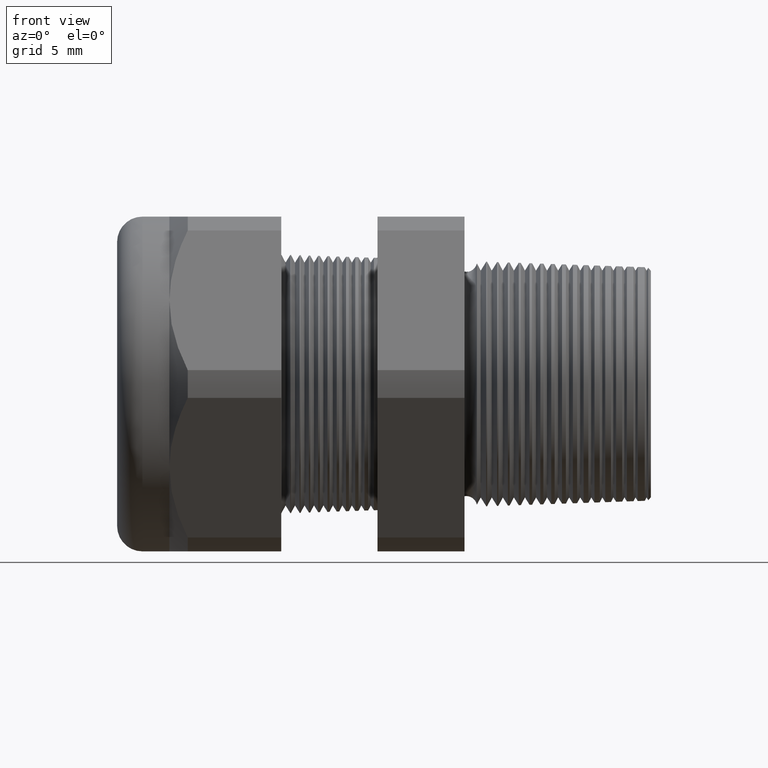
[diagram: clean part render]
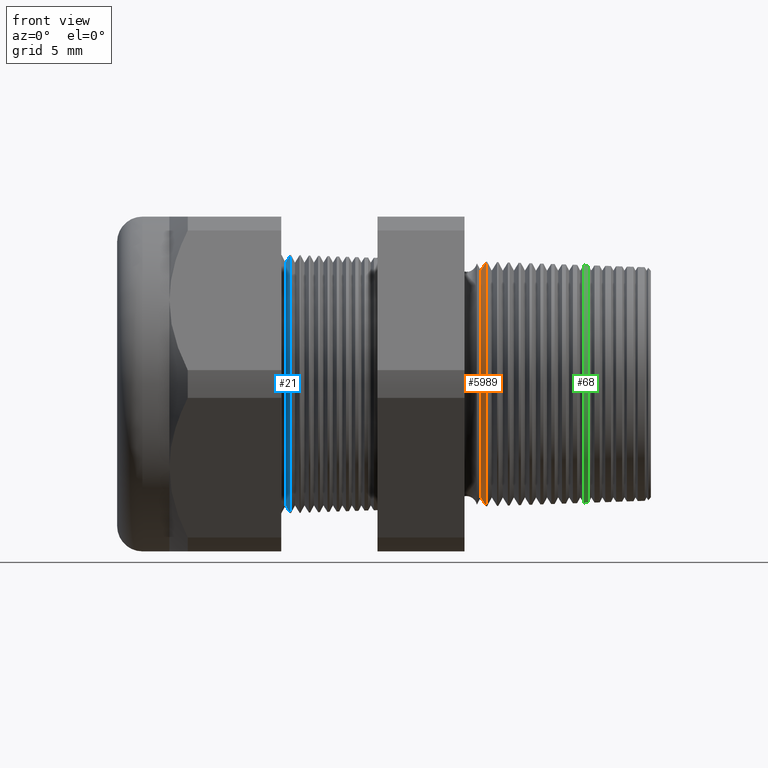
[diagram: same view with three faces highlighted in distinct colors, each labeled with its STEP entity id]
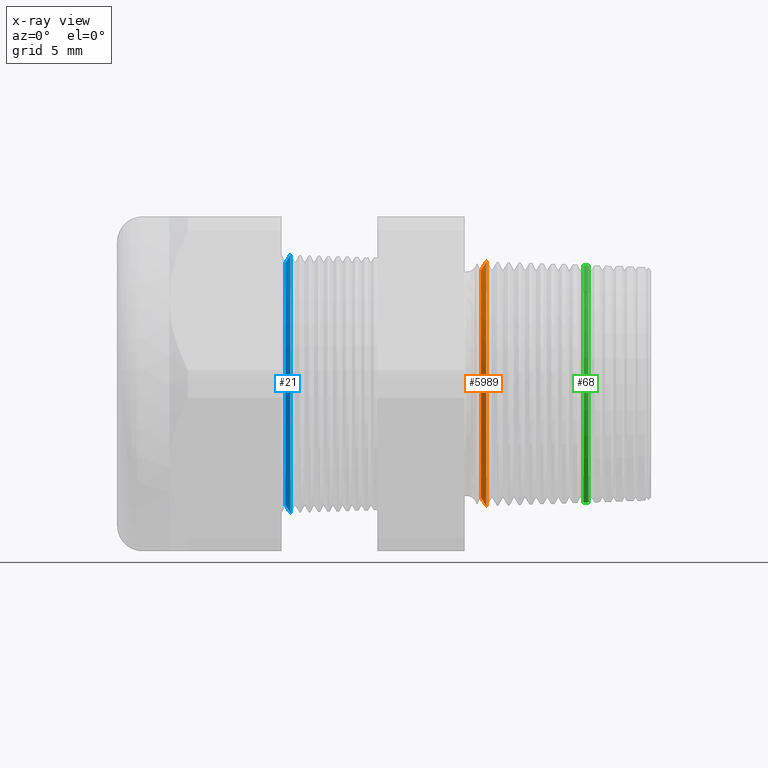
[diagram: x-ray of the same camera — body ghosted, the three highlighted faces saturated]
A machine part, front view with three faces highlighted in distinct colors.
The next image is the same camera in x-ray (body ghosted, the three faces saturated) — at least one of them is partly hidden behind the body in this view.
Their STEP definitions:

[orange] entity #5989 — the highlighted conical surface has half-angle 58 deg.
#456 = VERTEX_POINT ( 'NONE', #1451 ) ;
#457 = VERTEX_POINT ( 'NONE', #1450 ) ;
#459 = EDGE_CURVE ( 'NONE', #457, #460, #1449, .T. ) ;
#460 = VERTEX_POINT ( 'NONE', #1512 ) ;
#463 = VERTEX_POINT ( 'NONE', #1506 ) ;
#465 = EDGE_CURVE ( 'NONE', #456, #463, #1505, .T. ) ;
#1449 = LINE ( 'NONE', #1515, #1514 ) ;
#1450 = CARTESIAN_POINT ( 'NONE',  ( -0.2587370280109210800, 0.0000000000000000000, 0.3591487532021881400 ) ) ;
#1451 = CARTESIAN_POINT ( 'NONE',  ( -0.2587370280109210800, 4.538050950563370000E-017, -0.3591487532021881400 ) ) ;
#1502 = DIRECTION ( 'NONE',  ( 0.5299192642331928000, 0.0000000000000000000, -0.8480480961564335100 ) ) ;
#1503 = VECTOR ( 'NONE', #1502, 39.37007874015748900 ) ;
#1504 = CARTESIAN_POINT ( 'NONE',  ( -0.2587370280109210800, 0.0000000000000000000, -0.3591487532021881400 ) ) ;
#1505 = LINE ( 'NONE', #1504, #1503 ) ;
#1506 = CARTESIAN_POINT ( 'NONE',  ( -0.2411275089207906800, 4.743422911943913400E-017, -0.3873298746419349700 ) ) ;
#1512 = CARTESIAN_POINT ( 'NONE',  ( -0.2411275089207906800, 0.0000000000000000000, 0.3873298746419349700 ) ) ;
#1513 = DIRECTION ( 'NONE',  ( 0.5299192642331928000, 1.038559386480983200E-016, 0.8480480961564335100 ) ) ;
#1514 = VECTOR ( 'NONE', #1513, 39.37007874015748900 ) ;
#1515 = CARTESIAN_POINT ( 'NONE',  ( -0.2587370280109210800, 4.398303710268224600E-017, 0.3591487532021881400 ) ) ;
#2077 = DIRECTION ( 'NONE',  ( 0.0000000000000000000, 0.0000000000000000000, -1.000000000000000000 ) ) ;
#2078 = DIRECTION ( 'NONE',  ( 1.000000000000000000, 0.0000000000000000000, 0.0000000000000000000 ) ) ;
#2079 = CARTESIAN_POINT ( 'NONE',  ( -0.2587370280109210800, 0.0000000000000000000, 0.0000000000000000000 ) ) ;
#2080 = AXIS2_PLACEMENT_3D ( 'NONE', #2079, #2078, #2077 ) ;
#2081 = CIRCLE ( 'NONE', #2080, 0.3591487532021881400 ) ;
#2721 = CARTESIAN_POINT ( 'NONE',  ( -0.2411275089207906800, 0.0000000000000000000, 0.0000000000000000000 ) ) ;
#2722 = AXIS2_PLACEMENT_3D ( 'NONE', #2721, #2783, #2782 ) ;
#2723 = CIRCLE ( 'NONE', #2722, 0.3873298746419349700 ) ;
#2782 = DIRECTION ( 'NONE',  ( 0.0000000000000000000, 0.0000000000000000000, -1.000000000000000000 ) ) ;
#2783 = DIRECTION ( 'NONE',  ( -1.000000000000000000, 0.0000000000000000000, 0.0000000000000000000 ) ) ;
#3812 = EDGE_CURVE ( 'NONE', #457, #456, #2081, .T. ) ;
#4169 = EDGE_CURVE ( 'NONE', #463, #460, #2723, .T. ) ;
#5701 = DIRECTION ( 'NONE',  ( 0.0000000000000000000, 0.0000000000000000000, -1.000000000000000000 ) ) ;
#5702 = DIRECTION ( 'NONE',  ( 1.000000000000000000, 0.0000000000000000000, 0.0000000000000000000 ) ) ;
#5703 = CARTESIAN_POINT ( 'NONE',  ( -0.2587370280109210800, 0.0000000000000000000, 0.0000000000000000000 ) ) ;
#5704 = AXIS2_PLACEMENT_3D ( 'NONE', #5703, #5702, #5701 ) ;
#5705 = CONICAL_SURFACE ( 'NONE', #5704, 0.3591487532021881400, 1.012290966156725400 ) ;
#5706 = FACE_OUTER_BOUND ( 'NONE', #5988, .T. ) ;
#5978 = ORIENTED_EDGE ( 'NONE', *, *, #465, .T. ) ;
#5979 = ORIENTED_EDGE ( 'NONE', *, *, #4169, .T. ) ;
#5984 = ORIENTED_EDGE ( 'NONE', *, *, #3812, .T. ) ;
#5986 = ORIENTED_EDGE ( 'NONE', *, *, #459, .F. ) ;
#5988 = EDGE_LOOP ( 'NONE', ( #5986, #5984, #5978, #5979 ) ) ;
#5989 = ADVANCED_FACE ( 'NONE', ( #5706 ), #5705, .T. ) ;

[blue] entity #21 — the highlighted conical surface has half-angle 58 deg.
#16 = ORIENTED_EDGE ( 'NONE', *, *, #4545, .T. ) ;
#17 = ORIENTED_EDGE ( 'NONE', *, *, #26, .T. ) ;
#18 = EDGE_LOOP ( 'NONE', ( #19, #17, #16, #60 ) ) ;
#19 = ORIENTED_EDGE ( 'NONE', *, *, #4566, .F. ) ;
#21 = ADVANCED_FACE ( 'NONE', ( #675 ), #670, .T. ) ;
#26 = EDGE_CURVE ( 'NONE', #4549, #4577, #664, .T. ) ;
#60 = ORIENTED_EDGE ( 'NONE', *, *, #131, .F. ) ;
#131 = EDGE_CURVE ( 'NONE', #4557, #4547, #852, .T. ) ;
#660 = DIRECTION ( 'NONE',  ( 0.0000000000000000000, 0.0000000000000000000, -1.000000000000000000 ) ) ;
#661 = DIRECTION ( 'NONE',  ( 1.000000000000000000, 0.0000000000000000000, 0.0000000000000000000 ) ) ;
#662 = CARTESIAN_POINT ( 'NONE',  ( -0.8767624839723554600, 0.0000000000000000000, 0.0000000000000000000 ) ) ;
#663 = AXIS2_PLACEMENT_3D ( 'NONE', #662, #661, #660 ) ;
#664 = CIRCLE ( 'NONE', #663, 0.3845114984791284100 ) ;
#666 = DIRECTION ( 'NONE',  ( 0.0000000000000000000, 0.0000000000000000000, -1.000000000000000000 ) ) ;
#667 = DIRECTION ( 'NONE',  ( 1.000000000000000000, 0.0000000000000000000, 0.0000000000000000000 ) ) ;
#668 = CARTESIAN_POINT ( 'NONE',  ( -0.8767624839723554600, 0.0000000000000000000, 0.0000000000000000000 ) ) ;
#669 = AXIS2_PLACEMENT_3D ( 'NONE', #668, #667, #666 ) ;
#670 = CONICAL_SURFACE ( 'NONE', #669, 0.3845114984791284100, 1.012290966156732100 ) ;
#675 = FACE_OUTER_BOUND ( 'NONE', #18, .T. ) ;
#843 = DIRECTION ( 'NONE',  ( 0.0000000000000000000, 0.0000000000000000000, -1.000000000000000000 ) ) ;
#844 = DIRECTION ( 'NONE',  ( 1.000000000000000000, 0.0000000000000000000, 0.0000000000000000000 ) ) ;
#845 = CARTESIAN_POINT ( 'NONE',  ( -0.8614650324796656600, 0.0000000000000000000, 0.0000000000000000000 ) ) ;
#846 = AXIS2_PLACEMENT_3D ( 'NONE', #845, #844, #843 ) ;
#852 = CIRCLE ( 'NONE', #846, 0.4089925383092116200 ) ;
#3436 = LINE ( 'NONE', #3501, #3500 ) ;
#3489 = CARTESIAN_POINT ( 'NONE',  ( -0.8767624839723554600, 0.0000000000000000000, 0.3845114984791284100 ) ) ;
#3498 = CARTESIAN_POINT ( 'NONE',  ( -0.8614650324796656600, 5.008714029155272400E-017, -0.4089925383092116200 ) ) ;
#3499 = DIRECTION ( 'NONE',  ( 0.5299192642331871400, 0.0000000000000000000, -0.8480480961564369500 ) ) ;
#3500 = VECTOR ( 'NONE', #3499, 39.37007874015748900 ) ;
#3501 = CARTESIAN_POINT ( 'NONE',  ( -0.8767624839723554600, 0.0000000000000000000, -0.3845114984791284100 ) ) ;
#3512 = CARTESIAN_POINT ( 'NONE',  ( -0.8767624839723554600, 4.864979817491159200E-017, -0.3845114984791284100 ) ) ;
#3521 = DIRECTION ( 'NONE',  ( 0.5299192642331871400, 1.038559386480987400E-016, 0.8480480961564369500 ) ) ;
#3522 = VECTOR ( 'NONE', #3521, 39.37007874015748900 ) ;
#3523 = CARTESIAN_POINT ( 'NONE',  ( -0.8767624839723554600, 4.708907758478169600E-017, 0.3845114984791284100 ) ) ;
#3524 = LINE ( 'NONE', #3523, #3522 ) ;
#3536 = CARTESIAN_POINT ( 'NONE',  ( -0.8614650324796656600, 0.0000000000000000000, 0.4089925383092116200 ) ) ;
#4545 = EDGE_CURVE ( 'NONE', #4577, #4547, #3436, .T. ) ;
#4547 = VERTEX_POINT ( 'NONE', #3498 ) ;
#4549 = VERTEX_POINT ( 'NONE', #3489 ) ;
#4557 = VERTEX_POINT ( 'NONE', #3536 ) ;
#4566 = EDGE_CURVE ( 'NONE', #4549, #4557, #3524, .T. ) ;
#4577 = VERTEX_POINT ( 'NONE', #3512 ) ;

[green] entity #68 — the highlighted conical surface has half-angle 2 deg.
#57 = ORIENTED_EDGE ( 'NONE', *, *, #4932, .F. ) ;
#63 = EDGE_LOOP ( 'NONE', ( #57, #3790, #3788, #3787 ) ) ;
#68 = ADVANCED_FACE ( 'NONE', ( #721 ), #720, .T. ) ;
#717 = DIRECTION ( 'NONE',  ( 0.0000000000000000000, 0.0000000000000000000, 1.000000000000000000 ) ) ;
#718 = DIRECTION ( 'NONE',  ( -1.000000000000000000, 0.0000000000000000000, 0.0000000000000000000 ) ) ;
#719 = AXIS2_PLACEMENT_3D ( 'NONE', #727, #718, #717 ) ;
#720 = CONICAL_SURFACE ( 'NONE', #719, 0.3691317010271071300, 0.03490658503987932600 ) ;
#721 = FACE_OUTER_BOUND ( 'NONE', #63, .T. ) ;
#727 = CARTESIAN_POINT ( 'NONE',  ( 0.2800000000000000300, 0.0000000000000000000, 0.0000000000000000000 ) ) ;
#2002 = DIRECTION ( 'NONE',  ( 0.0000000000000000000, 0.0000000000000000000, 1.000000000000000000 ) ) ;
#2003 = DIRECTION ( 'NONE',  ( 1.000000000000000000, 0.0000000000000000000, 0.0000000000000000000 ) ) ;
#2004 = CARTESIAN_POINT ( 'NONE',  ( 0.08228380906208861100, 0.0000000000000000000, 0.0000000000000000000 ) ) ;
#2005 = AXIS2_PLACEMENT_3D ( 'NONE', #2004, #2003, #2002 ) ;
#2006 = CIRCLE ( 'NONE', #2005, 0.3760361025556349700 ) ;
#2018 = DIRECTION ( 'NONE',  ( 0.0000000000000000000, 0.0000000000000000000, -1.000000000000000000 ) ) ;
#2019 = DIRECTION ( 'NONE',  ( -1.000000000000000000, 0.0000000000000000000, 0.0000000000000000000 ) ) ;
#2020 = CARTESIAN_POINT ( 'NONE',  ( 0.06714568676934466700, 0.0000000000000000000, 0.0000000000000000000 ) ) ;
#2021 = AXIS2_PLACEMENT_3D ( 'NONE', #2020, #2019, #2018 ) ;
#2022 = CIRCLE ( 'NONE', #2021, 0.3765647374347576000 ) ;
#2136 = CARTESIAN_POINT ( 'NONE',  ( 0.08228380906208861100, 0.0000000000000000000, 0.3760361025556349700 ) ) ;
#2288 = CARTESIAN_POINT ( 'NONE',  ( 0.08228380906208861100, 4.608351048649217600E-017, -0.3760361025556349700 ) ) ;
#2382 = CARTESIAN_POINT ( 'NONE',  ( 0.06714568676934466700, 4.611588003712394200E-017, -0.3765647374347576000 ) ) ;
#2607 = CARTESIAN_POINT ( 'NONE',  ( 0.06714568676934466700, 0.0000000000000000000, 0.3765647374347576000 ) ) ;
#3783 = EDGE_CURVE ( 'NONE', #3961, #4090, #2022, .T. ) ;
#3787 = ORIENTED_EDGE ( 'NONE', *, *, #3783, .F. ) ;
#3788 = ORIENTED_EDGE ( 'NONE', *, *, #4927, .T. ) ;
#3790 = ORIENTED_EDGE ( 'NONE', *, *, #3791, .F. ) ;
#3791 = EDGE_CURVE ( 'NONE', #3846, #3899, #2006, .T. ) ;
#3846 = VERTEX_POINT ( 'NONE', #2136 ) ;
#3899 = VERTEX_POINT ( 'NONE', #2288 ) ;
#3961 = VERTEX_POINT ( 'NONE', #2382 ) ;
#4090 = VERTEX_POINT ( 'NONE', #2607 ) ;
#4927 = EDGE_CURVE ( 'NONE', #3846, #4090, #5370, .T. ) ;
#4932 = EDGE_CURVE ( 'NONE', #3899, #3961, #5366, .T. ) ;
#5363 = DIRECTION ( 'NONE',  ( -0.9993908270190959800, 4.273955692856252800E-018, -0.03489949670249371100 ) ) ;
#5364 = VECTOR ( 'NONE', #5363, 39.37007874015748100 ) ;
#5365 = CARTESIAN_POINT ( 'NONE',  ( 0.2800000000000000300, 4.520559561266645900E-017, -0.3691317010271071300 ) ) ;
#5366 = LINE ( 'NONE', #5365, #5364 ) ;
#5367 = DIRECTION ( 'NONE',  ( -0.9993908270190959800, 0.0000000000000000000, 0.03489949670249371100 ) ) ;
#5368 = VECTOR ( 'NONE', #5367, 39.37007874015748100 ) ;
#5369 = CARTESIAN_POINT ( 'NONE',  ( 0.2800000000000000300, 0.0000000000000000000, 0.3691317010271071300 ) ) ;
#5370 = LINE ( 'NONE', #5369, #5368 ) ;